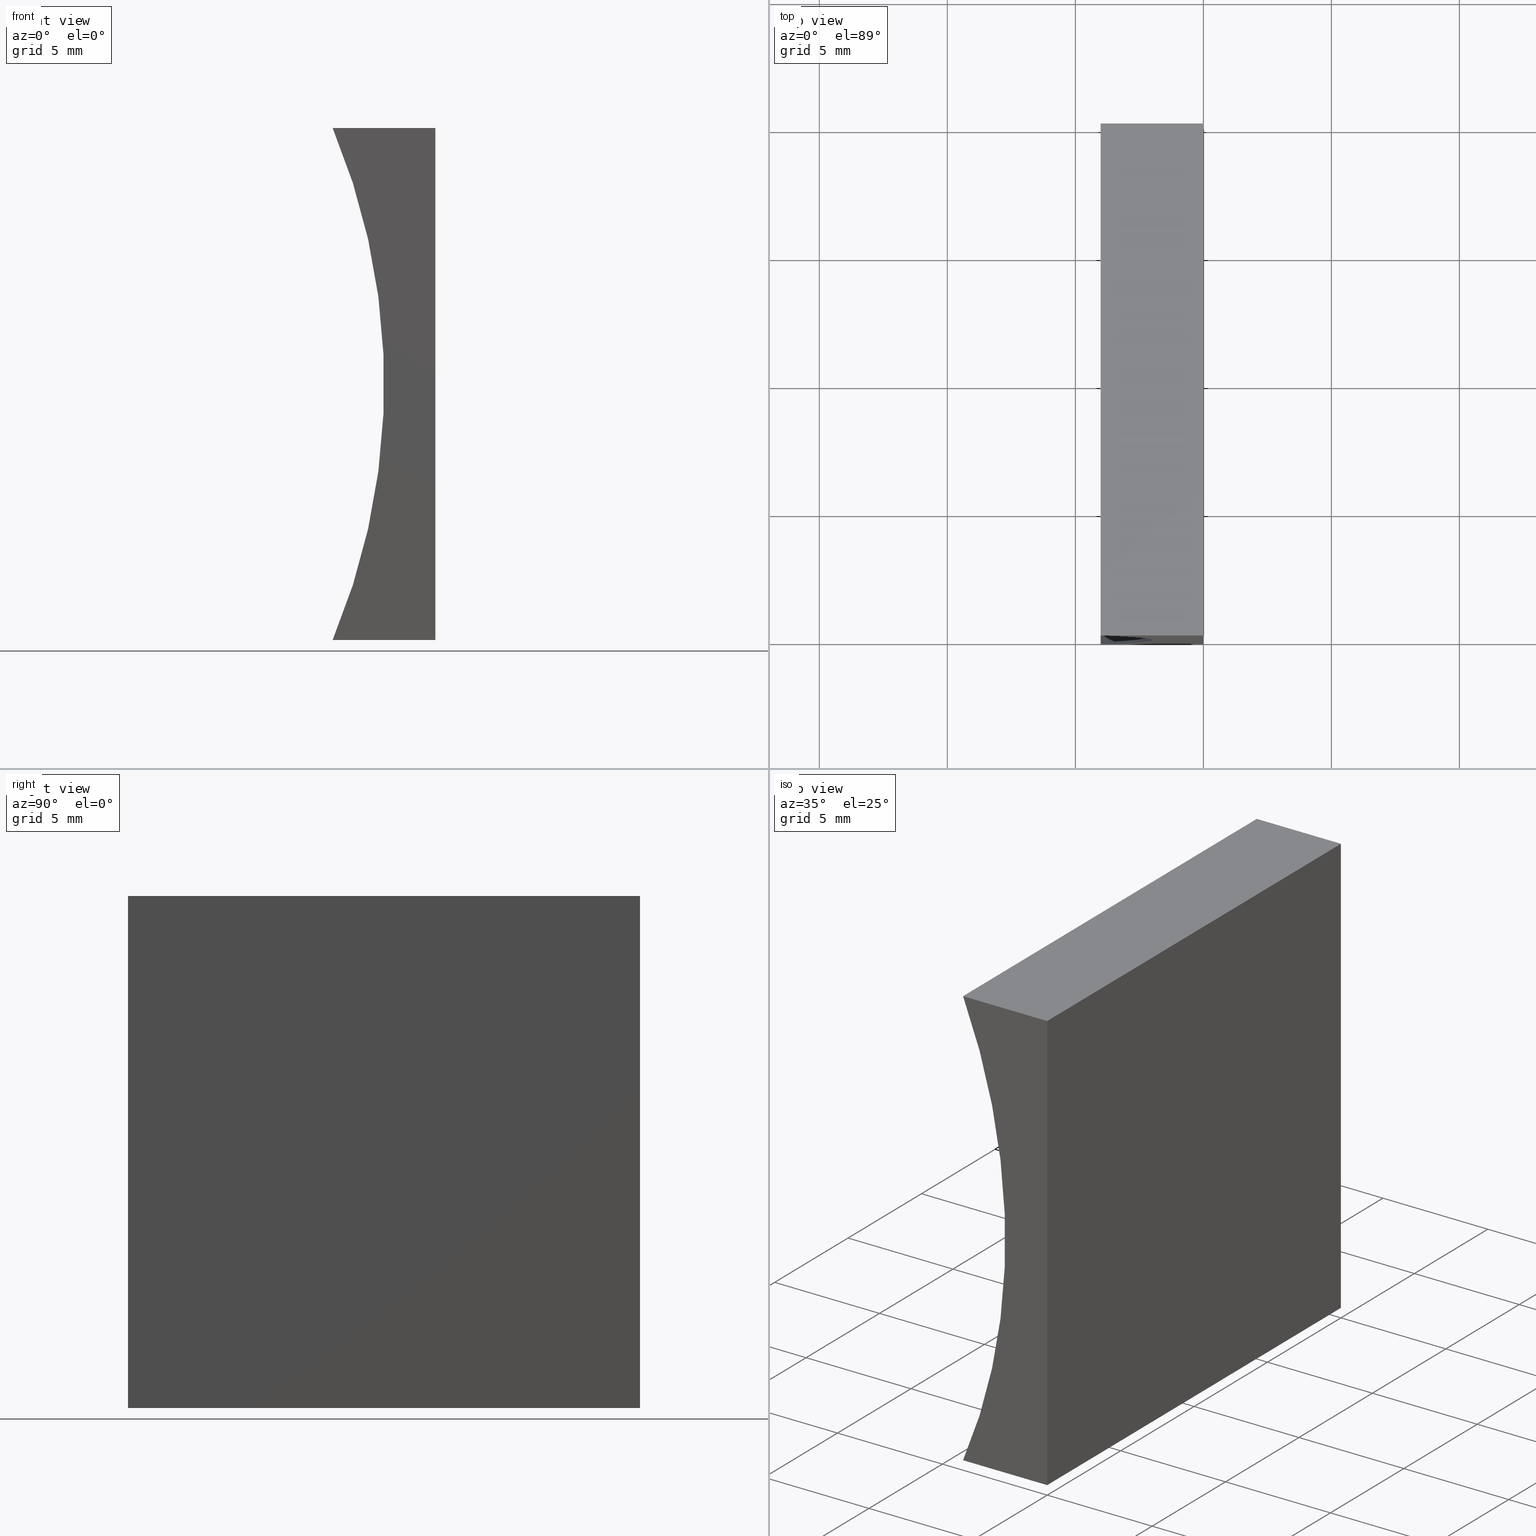
[diagram: canonical four-view strip — front | top / right | iso, engineering-drawing reading convention]
A machine part, canonical four-view strip (front | top / right | iso — engineering-drawing reading convention). The complete STEP part file that produces these views, byte-faithful:
ISO-10303-21;
HEADER;
FILE_DESCRIPTION (( 'STEP AP214' ),
    '1' );
FILE_NAME ('155345.STEP',
    '2019-06-28T02:49:32',
    ( 'user' ),
    ( '΢���й�' ),
    'SwSTEP 2.0',
    'SolidWorks 2016',
    '' );
FILE_SCHEMA (( 'AUTOMOTIVE_DESIGN' ));
ENDSEC;

DATA;
#1 = ORIENTED_EDGE ( 'NONE', *, *, #122, .T. ) ;
#2 =( NAMED_UNIT ( * ) SI_UNIT ( $, .STERADIAN. ) SOLID_ANGLE_UNIT ( ) );
#3 = COLOUR_RGB ( '',1.000000000000000000, 1.000000000000000000, 1.000000000000000000 ) ;
#4 = CARTESIAN_POINT ( 'NONE',  ( -27.85000000000000100, 0.0000000000000000000, 10.00000000000000200 ) ) ;
#5 = PLANE ( 'NONE',  #119 ) ;
#6 = VERTEX_POINT ( 'NONE', #92 ) ;
#7 = DIRECTION ( 'NONE',  ( 1.000000000000000000, -0.0000000000000000000, 8.646420205378973500E-016 ) ) ;
#8 = APPLICATION_CONTEXT ( 'automotive_design' ) ;
#9 =( NAMED_UNIT ( * ) PLANE_ANGLE_UNIT ( ) SI_UNIT ( $, .RADIAN. ) );
#10 = PRESENTATION_LAYER_ASSIGNMENT (  '', '', ( #154 ) ) ;
#11 = CARTESIAN_POINT ( 'NONE',  ( 0.0000000000000000000, 0.0000000000000000000, 0.0000000000000000000 ) ) ;
#12 = LINE ( 'NONE', #113, #170 ) ;
#13 = EDGE_CURVE ( 'NONE', #70, #88, #45, .T. ) ;
#14 = VECTOR ( 'NONE', #194, 1000.000000000000000 ) ;
#15 = ORIENTED_EDGE ( 'NONE', *, *, #30, .F. ) ;
#16 = DIRECTION ( 'NONE',  ( -0.0000000000000000000, -1.000000000000000000, -0.0000000000000000000 ) ) ;
#17 = LINE ( 'NONE', #150, #190 ) ;
#18 = CARTESIAN_POINT ( 'NONE',  ( 0.0000000000000000000, 20.00000000000000000, 0.0000000000000000000 ) ) ;
#19 = ORIENTED_EDGE ( 'NONE', *, *, #13, .F. ) ;
#20 = DIRECTION ( 'NONE',  ( -0.0000000000000000000, -1.000000000000000000, -0.0000000000000000000 ) ) ;
#21 = MANIFOLD_SOLID_BREP ( '͹̨-����1', #109 ) ;
#22 = LINE ( 'NONE', #79, #157 ) ;
#23 = DIRECTION ( 'NONE',  ( -0.0000000000000000000, -1.000000000000000000, -0.0000000000000000000 ) ) ;
#24 = PLANE ( 'NONE',  #63 ) ;
#25 = PRESENTATION_LAYER_ASSIGNMENT (  '', '', ( #105 ) ) ;
#26 = DIRECTION ( 'NONE',  ( -0.0000000000000000000, -1.000000000000000000, -0.0000000000000000000 ) ) ;
#27 = ORIENTED_EDGE ( 'NONE', *, *, #132, .T. ) ;
#28 =( LENGTH_UNIT ( ) NAMED_UNIT ( * ) SI_UNIT ( .MILLI., .METRE. ) );
#29 = APPLICATION_PROTOCOL_DEFINITION ( 'draft international standard', 'automotive_design', 1998, #8 ) ;
#30 = EDGE_CURVE ( 'NONE', #107, #70, #124, .T. ) ;
#31 = CARTESIAN_POINT ( 'NONE',  ( -4.012581935117213800, 0.0000000000000000000, 5.204170427930421300E-015 ) ) ;
#32 = ORIENTED_EDGE ( 'NONE', *, *, #137, .F. ) ;
#33 = LINE ( 'NONE', #147, #172 ) ;
#34 = DIRECTION ( 'NONE',  ( -1.000000000000000000, 0.0000000000000000000, -8.646420205378973500E-016 ) ) ;
#35 = PLANE ( 'NONE',  #112 ) ;
#36 = SURFACE_STYLE_FILL_AREA ( #73 ) ;
#37 = EDGE_LOOP ( 'NONE', ( #173, #171, #121, #81 ) ) ;
#38 =( NAMED_UNIT ( * ) SI_UNIT ( $, .STERADIAN. ) SOLID_ANGLE_UNIT ( ) );
#39 = COLOUR_RGB ( '',1.000000000000000000, 1.000000000000000000, 1.000000000000000000 ) ;
#40 = ORIENTED_EDGE ( 'NONE', *, *, #155, .T. ) ;
#41 = ADVANCED_FACE ( 'NONE', ( #110 ), #5, .F. ) ;
#42 = ORIENTED_EDGE ( 'NONE', *, *, #108, .F. ) ;
#43 = MECHANICAL_DESIGN_GEOMETRIC_PRESENTATION_REPRESENTATION (  '', ( #154 ), #85 ) ;
#44 = UNCERTAINTY_MEASURE_WITH_UNIT (LENGTH_MEASURE( 1.000000000000000100E-005 ), #53, 'distance_accuracy_value', 'NONE');
#45 = LINE ( 'NONE', #78, #14 ) ;
#46 = CARTESIAN_POINT ( 'NONE',  ( 0.0000000000000000000, 20.00000000000000000, 0.0000000000000000000 ) ) ;
#47 = EDGE_LOOP ( 'NONE', ( #111, #49, #95, #184 ) ) ;
#48 = FILL_AREA_STYLE ('',( #69 ) ) ;
#49 = ORIENTED_EDGE ( 'NONE', *, *, #86, .F. ) ;
#50 = CARTESIAN_POINT ( 'NONE',  ( 0.0000000000000000000, 20.00000000000000000, 0.0000000000000000000 ) ) ;
#51 = SURFACE_STYLE_USAGE ( .BOTH. , #84 ) ;
#52 = AXIS2_PLACEMENT_3D ( 'NONE', #46, #97, #64 ) ;
#53 =( LENGTH_UNIT ( ) NAMED_UNIT ( * ) SI_UNIT ( .MILLI., .METRE. ) );
#54 = DIRECTION ( 'NONE',  ( 0.0000000000000000000, 1.000000000000000000, 0.0000000000000000000 ) ) ;
#55 = VERTEX_POINT ( 'NONE', #156 ) ;
#56 = APPLICATION_CONTEXT ( 'automotive_design' ) ;
#57 = ADVANCED_FACE ( 'NONE', ( #145 ), #149, .F. ) ;
#58 = FACE_OUTER_BOUND ( 'NONE', #174, .T. ) ;
#59 = EDGE_CURVE ( 'NONE', #176, #135, #141, .T. ) ;
#60 = ORIENTED_EDGE ( 'NONE', *, *, #162, .F. ) ;
#61 = ORIENTED_EDGE ( 'NONE', *, *, #132, .F. ) ;
#62 = DIRECTION ( 'NONE',  ( 0.0000000000000000000, 0.0000000000000000000, 1.000000000000000000 ) ) ;
#63 = AXIS2_PLACEMENT_3D ( 'NONE', #199, #54, #120 ) ;
#64 = DIRECTION ( 'NONE',  ( 6.123233995736766000E-017, 0.0000000000000000000, 1.000000000000000000 ) ) ;
#65 = ORIENTED_EDGE ( 'NONE', *, *, #59, .T. ) ;
#66 = CARTESIAN_POINT ( 'NONE',  ( 1.224646799147353300E-015, 0.0000000000000000000, 20.00000000000000000 ) ) ;
#67 = SURFACE_STYLE_USAGE ( .BOTH. , #166 ) ;
#68 = DIRECTION ( 'NONE',  ( -6.123233995736766000E-017, -0.0000000000000000000, -1.000000000000000000 ) ) ;
#69 = FILL_AREA_STYLE_COLOUR ( '', #3 ) ;
#70 = VERTEX_POINT ( 'NONE', #75 ) ;
#71 = PLANE ( 'NONE',  #188 ) ;
#72 = DIRECTION ( 'NONE',  ( -0.0000000000000000000, -1.000000000000000000, -0.0000000000000000000 ) ) ;
#73 = FILL_AREA_STYLE ('',( #164 ) ) ;
#74 = MECHANICAL_DESIGN_GEOMETRIC_PRESENTATION_REPRESENTATION (  '', ( #105 ), #129 ) ;
#75 = CARTESIAN_POINT ( 'NONE',  ( 0.0000000000000000000, 0.0000000000000000000, 0.0000000000000000000 ) ) ;
#76 = CARTESIAN_POINT ( 'NONE',  ( -4.012581935117213800, 20.00000000000000000, 5.204170427930421300E-015 ) ) ;
#77 = DIRECTION ( 'NONE',  ( 0.0000000000000000000, -0.0000000000000000000, 1.000000000000000000 ) ) ;
#78 = CARTESIAN_POINT ( 'NONE',  ( 0.0000000000000000000, 0.0000000000000000000, 0.0000000000000000000 ) ) ;
#79 = CARTESIAN_POINT ( 'NONE',  ( -4.012581935117213800, 20.00000000000000000, 5.204170427930421300E-015 ) ) ;
#80 = PRESENTATION_STYLE_ASSIGNMENT (( #51 ) ) ;
#81 = ORIENTED_EDGE ( 'NONE', *, *, #108, .T. ) ;
#82 = DIRECTION ( 'NONE',  ( 1.000000000000000000, 0.0000000000000000000, 0.0000000000000000000 ) ) ;
#83 = APPLICATION_PROTOCOL_DEFINITION ( 'draft international standard', 'automotive_design', 1998, #56 ) ;
#84 = SURFACE_SIDE_STYLE ('',( #182 ) ) ;
#85 =( GEOMETRIC_REPRESENTATION_CONTEXT ( 3 ) GLOBAL_UNCERTAINTY_ASSIGNED_CONTEXT ( ( #192 ) ) GLOBAL_UNIT_ASSIGNED_CONTEXT ( ( #197, #9, #38 ) ) REPRESENTATION_CONTEXT ( 'NONE', 'WORKASPACE' ) );
#86 = EDGE_CURVE ( 'NONE', #135, #107, #193, .T. ) ;
#87 = ORIENTED_EDGE ( 'NONE', *, *, #98, .T. ) ;
#88 = VERTEX_POINT ( 'NONE', #31 ) ;
#89 = CARTESIAN_POINT ( 'NONE',  ( -27.85000000000000100, 20.00000000000000000, 10.00000000000000200 ) ) ;
#90 = ADVANCED_BREP_SHAPE_REPRESENTATION ( '155345', ( #21, #100 ), #102 ) ;
#91 = PRODUCT_DEFINITION_SHAPE ( 'NONE', 'NONE',  #169 ) ;
#92 = CARTESIAN_POINT ( 'NONE',  ( -4.012581935117213000, 0.0000000000000000000, 19.99999999999999600 ) ) ;
#93 = ORIENTED_EDGE ( 'NONE', *, *, #137, .T. ) ;
#94 = EDGE_LOOP ( 'NONE', ( #93, #60, #104, #1 ) ) ;
#95 = ORIENTED_EDGE ( 'NONE', *, *, #59, .F. ) ;
#96 = DIRECTION ( 'NONE',  ( 0.0000000000000000000, 0.0000000000000000000, 1.000000000000000000 ) ) ;
#97 = DIRECTION ( 'NONE',  ( -1.000000000000000000, 0.0000000000000000000, 6.123233995736766000E-017 ) ) ;
#98 = EDGE_CURVE ( 'NONE', #55, #126, #103, .T. ) ;
#99 = ADVANCED_FACE ( 'NONE', ( #196 ), #35, .T. ) ;
#100 = AXIS2_PLACEMENT_3D ( 'NONE', #101, #96, #82 ) ;
#101 = CARTESIAN_POINT ( 'NONE',  ( 0.0000000000000000000, 0.0000000000000000000, 0.0000000000000000000 ) ) ;
#102 =( GEOMETRIC_REPRESENTATION_CONTEXT ( 3 ) GLOBAL_UNCERTAINTY_ASSIGNED_CONTEXT ( ( #187 ) ) GLOBAL_UNIT_ASSIGNED_CONTEXT ( ( #28, #133, #2 ) ) REPRESENTATION_CONTEXT ( 'NONE', 'WORKASPACE' ) );
#103 = LINE ( 'NONE', #50, #185 ) ;
#104 = ORIENTED_EDGE ( 'NONE', *, *, #155, .F. ) ;
#105 = STYLED_ITEM ( 'NONE', ( #165 ), #90 ) ;
#106 = DIRECTION ( 'NONE',  ( 0.0000000000000000000, 0.0000000000000000000, 1.000000000000000000 ) ) ;
#107 = VERTEX_POINT ( 'NONE', #66 ) ;
#108 = EDGE_CURVE ( 'NONE', #55, #70, #142, .T. ) ;
#109 = CLOSED_SHELL ( 'NONE', ( #41, #57, #118, #200, #99, #181 ) ) ;
#110 = FACE_OUTER_BOUND ( 'NONE', #37, .T. ) ;
#111 = ORIENTED_EDGE ( 'NONE', *, *, #115, .T. ) ;
#112 = AXIS2_PLACEMENT_3D ( 'NONE', #195, #152, #77 ) ;
#113 = CARTESIAN_POINT ( 'NONE',  ( 0.0000000000000000000, 20.00000000000000000, 0.0000000000000000000 ) ) ;
#114 = PRODUCT_CONTEXT ( 'NONE', #56, 'mechanical' ) ;
#115 = EDGE_CURVE ( 'NONE', #6, #107, #33, .T. ) ;
#116 = SHAPE_DEFINITION_REPRESENTATION ( #91, #90 ) ;
#117 = VECTOR ( 'NONE', #68, 1000.000000000000000 ) ;
#118 = ADVANCED_FACE ( 'NONE', ( #204 ), #71, .F. ) ;
#119 = AXIS2_PLACEMENT_3D ( 'NONE', #18, #189, #140 ) ;
#120 = DIRECTION ( 'NONE',  ( 0.0000000000000000000, -0.0000000000000000000, 1.000000000000000000 ) ) ;
#121 = ORIENTED_EDGE ( 'NONE', *, *, #98, .F. ) ;
#122 = EDGE_CURVE ( 'NONE', #126, #88, #22, .T. ) ;
#123 = DIRECTION ( 'NONE',  ( 1.000000000000000000, -0.0000000000000000000, 8.646420205378973500E-016 ) ) ;
#124 = LINE ( 'NONE', #11, #117 ) ;
#125 = ORIENTED_EDGE ( 'NONE', *, *, #86, .T. ) ;
#126 = VERTEX_POINT ( 'NONE', #76 ) ;
#127 = AXIS2_PLACEMENT_3D ( 'NONE', #4, #180, #106 ) ;
#128 = DIRECTION ( 'NONE',  ( 8.646420205378973500E-016, 0.0000000000000000000, -1.000000000000000000 ) ) ;
#129 =( GEOMETRIC_REPRESENTATION_CONTEXT ( 3 ) GLOBAL_UNCERTAINTY_ASSIGNED_CONTEXT ( ( #44 ) ) GLOBAL_UNIT_ASSIGNED_CONTEXT ( ( #53, #198, #179 ) ) REPRESENTATION_CONTEXT ( 'NONE', 'WORKASPACE' ) );
#130 = PRODUCT_DEFINITION_CONTEXT ( 'detailed design', #8, 'design' ) ;
#131 = VECTOR ( 'NONE', #72, 1000.000000000000000 ) ;
#132 = EDGE_CURVE ( 'NONE', #135, #55, #12, .T. ) ;
#133 =( NAMED_UNIT ( * ) PLANE_ANGLE_UNIT ( ) SI_UNIT ( $, .RADIAN. ) );
#134 = VECTOR ( 'NONE', #123, 1000.000000000000000 ) ;
#135 = VERTEX_POINT ( 'NONE', #175 ) ;
#136 = DIRECTION ( 'NONE',  ( 0.0000000000000000000, 0.0000000000000000000, -1.000000000000000000 ) ) ;
#137 = EDGE_CURVE ( 'NONE', #88, #6, #203, .T. ) ;
#138 = ORIENTED_EDGE ( 'NONE', *, *, #30, .T. ) ;
#139 = PRODUCT ( '155345', '155345', '', ( #114 ) ) ;
#140 = DIRECTION ( 'NONE',  ( 1.000000000000000000, 0.0000000000000000000, -8.646420205378970500E-016 ) ) ;
#141 = LINE ( 'NONE', #143, #134 ) ;
#142 = LINE ( 'NONE', #178, #131 ) ;
#143 = CARTESIAN_POINT ( 'NONE',  ( 1.224646799147353300E-015, 20.00000000000000000, 20.00000000000000000 ) ) ;
#144 = DIRECTION ( 'NONE',  ( -6.123233995736766000E-017, -0.0000000000000000000, -1.000000000000000000 ) ) ;
#145 = FACE_OUTER_BOUND ( 'NONE', #94, .T. ) ;
#146 = EDGE_LOOP ( 'NONE', ( #87, #40, #65, #27 ) ) ;
#147 = CARTESIAN_POINT ( 'NONE',  ( 1.224646799147353300E-015, 0.0000000000000000000, 20.00000000000000000 ) ) ;
#148 = PRODUCT_RELATED_PRODUCT_CATEGORY ( 'part', '', ( #139 ) ) ;
#149 = CYLINDRICAL_SURFACE ( 'NONE', #177, 25.85000000000000100 ) ;
#150 = CARTESIAN_POINT ( 'NONE',  ( -4.012581935117213000, 20.00000000000000000, 19.99999999999999600 ) ) ;
#151 = ORIENTED_EDGE ( 'NONE', *, *, #115, .F. ) ;
#152 = DIRECTION ( 'NONE',  ( 0.0000000000000000000, 1.000000000000000000, 0.0000000000000000000 ) ) ;
#153 = PLANE ( 'NONE',  #52 ) ;
#154 = STYLED_ITEM ( 'NONE', ( #80 ), #21 ) ;
#155 = EDGE_CURVE ( 'NONE', #126, #176, #161, .T. ) ;
#156 = CARTESIAN_POINT ( 'NONE',  ( 0.0000000000000000000, 20.00000000000000000, 0.0000000000000000000 ) ) ;
#157 = VECTOR ( 'NONE', #23, 1000.000000000000000 ) ;
#158 = FACE_OUTER_BOUND ( 'NONE', #168, .T. ) ;
#159 = PRODUCT_DEFINITION_FORMATION_WITH_SPECIFIED_SOURCE ( '�κ�', '', #139, .NOT_KNOWN. ) ;
#160 = DIRECTION ( 'NONE',  ( -0.0000000000000000000, -1.000000000000000000, -0.0000000000000000000 ) ) ;
#161 = CIRCLE ( 'NONE', #201, 25.85000000000000500 ) ;
#162 = EDGE_CURVE ( 'NONE', #176, #6, #17, .T. ) ;
#163 = VECTOR ( 'NONE', #20, 1000.000000000000000 ) ;
#164 = FILL_AREA_STYLE_COLOUR ( '', #39 ) ;
#165 = PRESENTATION_STYLE_ASSIGNMENT (( #67 ) ) ;
#166 = SURFACE_SIDE_STYLE ('',( #36 ) ) ;
#167 = CARTESIAN_POINT ( 'NONE',  ( -4.012581935117213000, 20.00000000000000000, 19.99999999999999600 ) ) ;
#168 = EDGE_LOOP ( 'NONE', ( #138, #42, #61, #125 ) ) ;
#169 = PRODUCT_DEFINITION ( 'δ֪', '', #159, #130 ) ;
#170 = VECTOR ( 'NONE', #144, 1000.000000000000000 ) ;
#171 = ORIENTED_EDGE ( 'NONE', *, *, #122, .F. ) ;
#172 = VECTOR ( 'NONE', #7, 1000.000000000000000 ) ;
#173 = ORIENTED_EDGE ( 'NONE', *, *, #13, .T. ) ;
#174 = EDGE_LOOP ( 'NONE', ( #19, #15, #151, #32 ) ) ;
#175 = CARTESIAN_POINT ( 'NONE',  ( 1.224646799147353300E-015, 20.00000000000000000, 20.00000000000000000 ) ) ;
#176 = VERTEX_POINT ( 'NONE', #167 ) ;
#177 = AXIS2_PLACEMENT_3D ( 'NONE', #89, #160, #136 ) ;
#178 = CARTESIAN_POINT ( 'NONE',  ( 0.0000000000000000000, 20.00000000000000000, 0.0000000000000000000 ) ) ;
#179 =( NAMED_UNIT ( * ) SI_UNIT ( $, .STERADIAN. ) SOLID_ANGLE_UNIT ( ) );
#180 = DIRECTION ( 'NONE',  ( -0.0000000000000000000, -1.000000000000000000, -0.0000000000000000000 ) ) ;
#181 = ADVANCED_FACE ( 'NONE', ( #58 ), #24, .F. ) ;
#182 = SURFACE_STYLE_FILL_AREA ( #48 ) ;
#183 = CARTESIAN_POINT ( 'NONE',  ( -27.85000000000000100, 20.00000000000000000, 10.00000000000000200 ) ) ;
#184 = ORIENTED_EDGE ( 'NONE', *, *, #162, .T. ) ;
#185 = VECTOR ( 'NONE', #186, 1000.000000000000000 ) ;
#186 = DIRECTION ( 'NONE',  ( -1.000000000000000000, 0.0000000000000000000, 8.646420205378970500E-016 ) ) ;
#187 = UNCERTAINTY_MEASURE_WITH_UNIT (LENGTH_MEASURE( 1.000000000000000100E-005 ), #28, 'distance_accuracy_value', 'NONE');
#188 = AXIS2_PLACEMENT_3D ( 'NONE', #191, #128, #34 ) ;
#189 = DIRECTION ( 'NONE',  ( 8.646420205378970500E-016, -0.0000000000000000000, 1.000000000000000000 ) ) ;
#190 = VECTOR ( 'NONE', #16, 1000.000000000000000 ) ;
#191 = CARTESIAN_POINT ( 'NONE',  ( 1.224646799147353300E-015, 20.00000000000000000, 20.00000000000000000 ) ) ;
#192 = UNCERTAINTY_MEASURE_WITH_UNIT (LENGTH_MEASURE( 1.000000000000000100E-005 ), #197, 'distance_accuracy_value', 'NONE');
#193 = LINE ( 'NONE', #202, #163 ) ;
#194 = DIRECTION ( 'NONE',  ( -1.000000000000000000, 0.0000000000000000000, 8.646420205378970500E-016 ) ) ;
#195 = CARTESIAN_POINT ( 'NONE',  ( -27.85000000000000100, 20.00000000000000000, 10.00000000000000200 ) ) ;
#196 = FACE_OUTER_BOUND ( 'NONE', #146, .T. ) ;
#197 =( LENGTH_UNIT ( ) NAMED_UNIT ( * ) SI_UNIT ( .MILLI., .METRE. ) );
#198 =( NAMED_UNIT ( * ) PLANE_ANGLE_UNIT ( ) SI_UNIT ( $, .RADIAN. ) );
#199 = CARTESIAN_POINT ( 'NONE',  ( -27.85000000000000100, 0.0000000000000000000, 10.00000000000000200 ) ) ;
#200 = ADVANCED_FACE ( 'NONE', ( #158 ), #153, .F. ) ;
#201 = AXIS2_PLACEMENT_3D ( 'NONE', #183, #26, #62 ) ;
#202 = CARTESIAN_POINT ( 'NONE',  ( 1.224646799147353300E-015, 20.00000000000000000, 20.00000000000000000 ) ) ;
#203 = CIRCLE ( 'NONE', #127, 25.85000000000000500 ) ;
#204 = FACE_OUTER_BOUND ( 'NONE', #47, .T. ) ;
ENDSEC;
END-ISO-10303-21;
